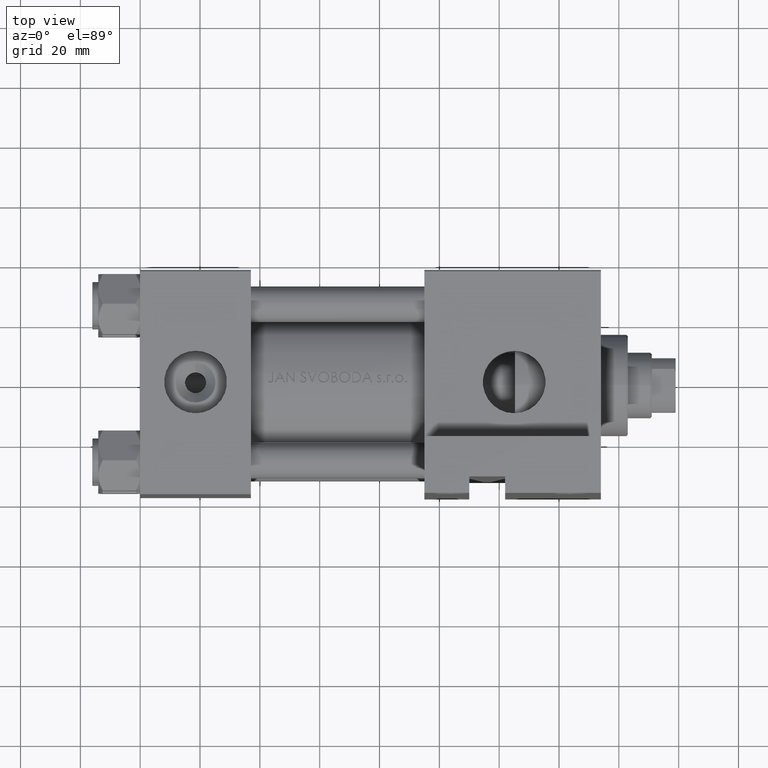
[diagram: clean part render]
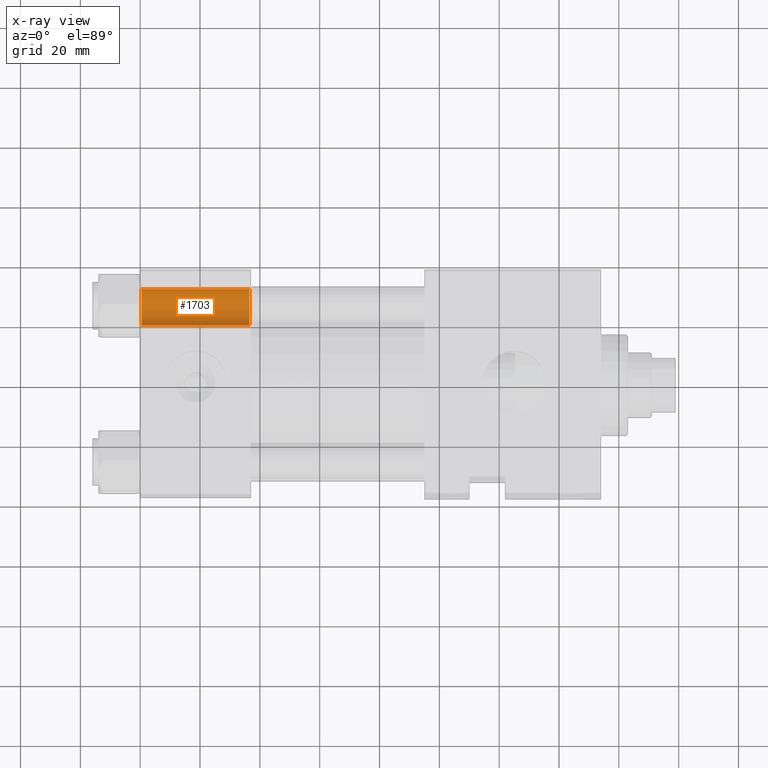
[diagram: x-ray — body ghosted, one internal face saturated and labeled with its STEP entity id]
A machine part, top view, then the same camera in x-ray: the body is ghosted and one INTERNAL B-rep face — a face not visible from any outside direction — is saturated and labeled: STEP entity #1703.
In plain terms, the highlighted cylindrical surface (edge-blend (fillet) strip) has radius 6 mm, axis along (-1, -0, 0).
Its self-contained STEP definition (entity closure, byte-faithful):
#558 = ORIENTED_EDGE ( 'NONE', *, *, #23768, .T. ) ;
#902 = FACE_OUTER_BOUND ( 'NONE', #27002, .T. ) ;
#1475 = LINE ( 'NONE', #12782, #26025 ) ;
#1480 = VERTEX_POINT ( 'NONE', #20988 ) ;
#1703 = ADVANCED_FACE ( 'NONE', ( #902 ), #41391, .F. ) ;
#2309 = CIRCLE ( 'NONE', #35395, 6.000000000000008882 ) ;
#5176 = EDGE_CURVE ( 'NONE', #1480, #17392, #2309, .T. ) ;
#6891 = ORIENTED_EDGE ( 'NONE', *, *, #5176, .T. ) ;
#7003 = CARTESIAN_POINT ( 'NONE',  ( 37.00000000000000711, 26.14999999999999858, 26.15000000000000213 ) ) ;
#8935 = VERTEX_POINT ( 'NONE', #11797 ) ;
#9688 = CARTESIAN_POINT ( 'NONE',  ( 0.5000000000000213163, 26.14999999999999858, 26.15000000000000213 ) ) ;
#10414 = DIRECTION ( 'NONE',  ( 0.000000000000000000, 0.000000000000000000, 1.000000000000000000 ) ) ;
#11452 = VERTEX_POINT ( 'NONE', #40282 ) ;
#11797 = CARTESIAN_POINT ( 'NONE',  ( 36.49999999999997868, 26.14999999999999858, 32.15000000000001279 ) ) ;
#12782 = CARTESIAN_POINT ( 'NONE',  ( 37.00000000000000711, 26.14999999999999858, 32.15000000000001279 ) ) ;
#14862 = CARTESIAN_POINT ( 'NONE',  ( 36.49999999999997868, 26.14999999999999858, 26.15000000000000213 ) ) ;
#17392 = VERTEX_POINT ( 'NONE', #32443 ) ;
#20988 = CARTESIAN_POINT ( 'NONE',  ( 0.5000000000000213163, 26.14999999999999858, 32.15000000000001279 ) ) ;
#21242 = DIRECTION ( 'NONE',  ( -1.000000000000000000, 0.000000000000000000, 0.000000000000000000 ) ) ;
#22980 = AXIS2_PLACEMENT_3D ( 'NONE', #14862, #46537, #36322 ) ;
#23768 = EDGE_CURVE ( 'NONE', #8935, #1480, #1475, .T. ) ;
#24931 = EDGE_CURVE ( 'NONE', #11452, #17392, #46501, .T. ) ;
#25331 = CIRCLE ( 'NONE', #22980, 6.000000000000008882 ) ;
#26025 = VECTOR ( 'NONE', #45824, 1000.000000000000000 ) ;
#27002 = EDGE_LOOP ( 'NONE', ( #41182, #33166, #558, #6891 ) ) ;
#28376 = AXIS2_PLACEMENT_3D ( 'NONE', #7003, #36389, #45010 ) ;
#32443 = CARTESIAN_POINT ( 'NONE',  ( 0.5000000000000213163, 26.14999999999999858, 20.14999999999999858 ) ) ;
#33166 = ORIENTED_EDGE ( 'NONE', *, *, #33658, .T. ) ;
#33658 = EDGE_CURVE ( 'NONE', #11452, #8935, #25331, .T. ) ;
#35395 = AXIS2_PLACEMENT_3D ( 'NONE', #9688, #21242, #10414 ) ;
#36322 = DIRECTION ( 'NONE',  ( 0.000000000000000000, 0.000000000000000000, 1.000000000000000000 ) ) ;
#36389 = DIRECTION ( 'NONE',  ( -1.000000000000000000, -0.000000000000000000, -0.000000000000000000 ) ) ;
#38393 = VECTOR ( 'NONE', #43127, 1000.000000000000000 ) ;
#40282 = CARTESIAN_POINT ( 'NONE',  ( 36.49999999999997868, 26.14999999999999858, 20.14999999999999858 ) ) ;
#41182 = ORIENTED_EDGE ( 'NONE', *, *, #24931, .F. ) ;
#41391 = CYLINDRICAL_SURFACE ( 'NONE', #28376, 6.000000000000008882 ) ;
#43127 = DIRECTION ( 'NONE',  ( -1.000000000000000000, -0.000000000000000000, -0.000000000000000000 ) ) ;
#45010 = DIRECTION ( 'NONE',  ( 0.000000000000000000, 0.000000000000000000, 1.000000000000000000 ) ) ;
#45824 = DIRECTION ( 'NONE',  ( -1.000000000000000000, -0.000000000000000000, -0.000000000000000000 ) ) ;
#46501 = LINE ( 'NONE', #46731, #38393 ) ;
#46537 = DIRECTION ( 'NONE',  ( 1.000000000000000000, -0.000000000000000000, -0.000000000000000000 ) ) ;
#46731 = CARTESIAN_POINT ( 'NONE',  ( 37.00000000000000711, 26.14999999999999858, 20.14999999999999858 ) ) ;